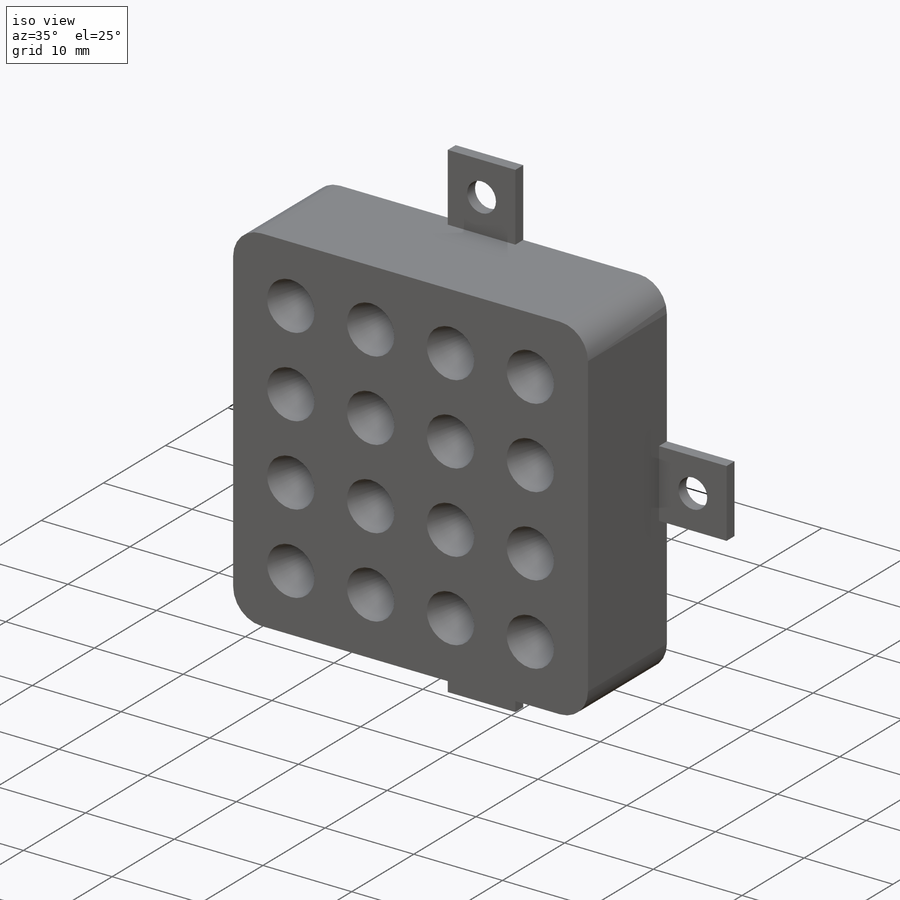
[diagram: iso view]
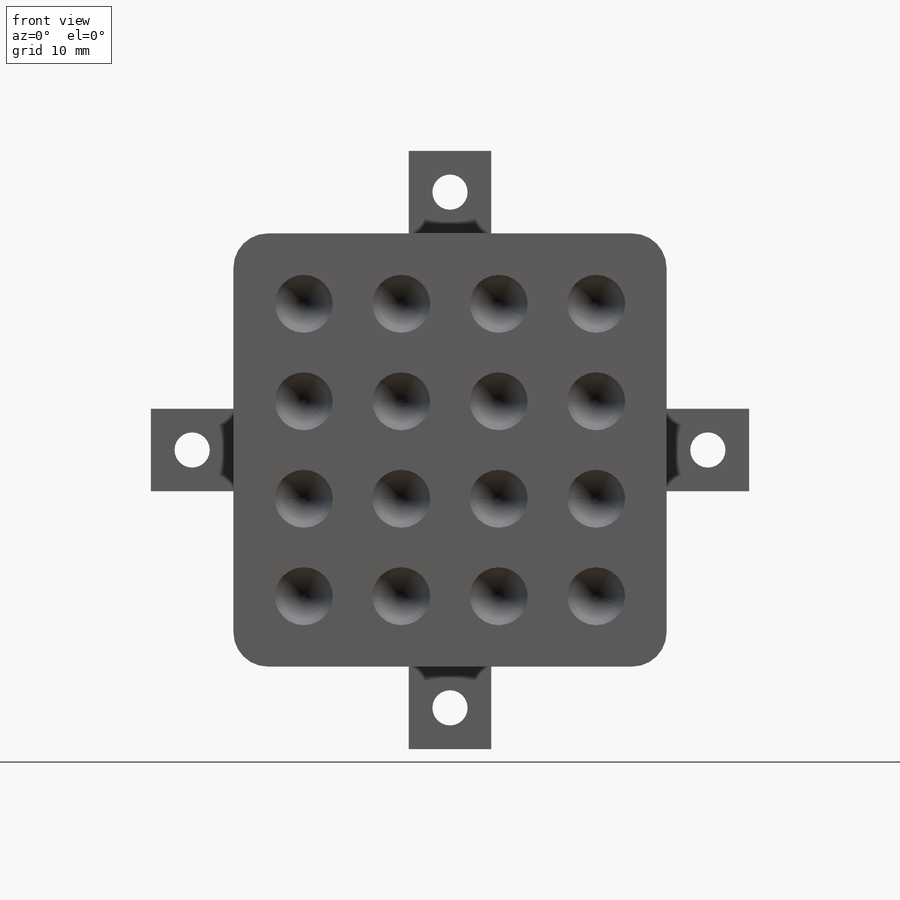
[diagram: front view]
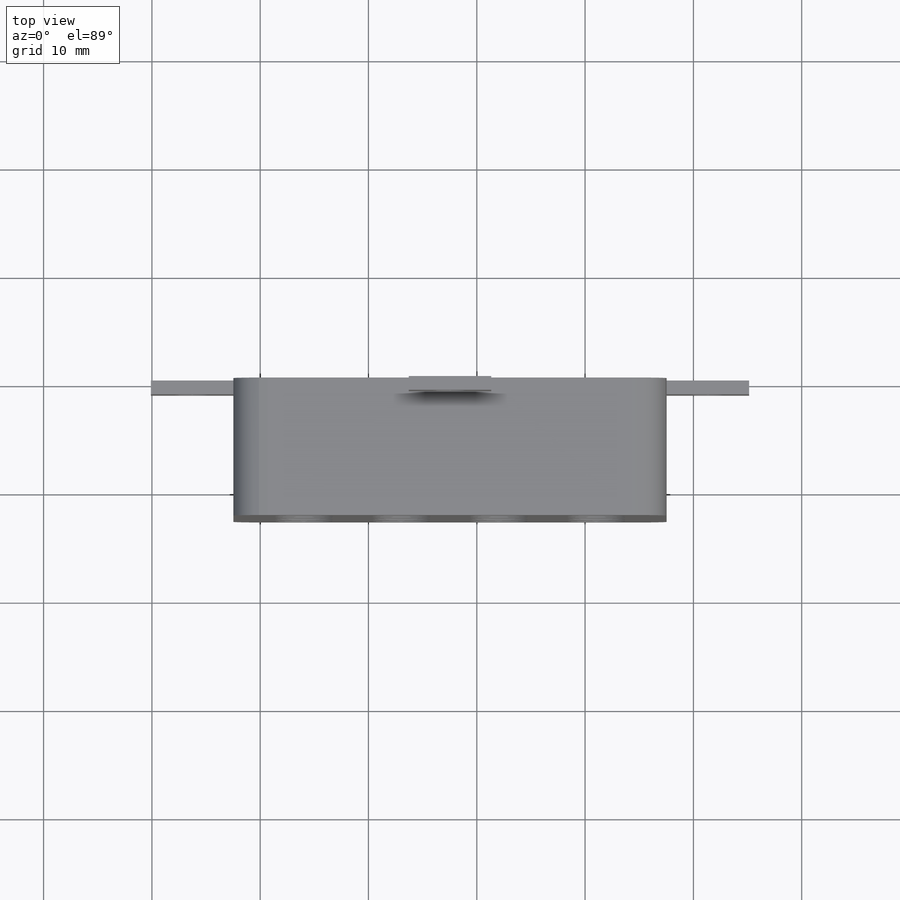
[diagram: top view]
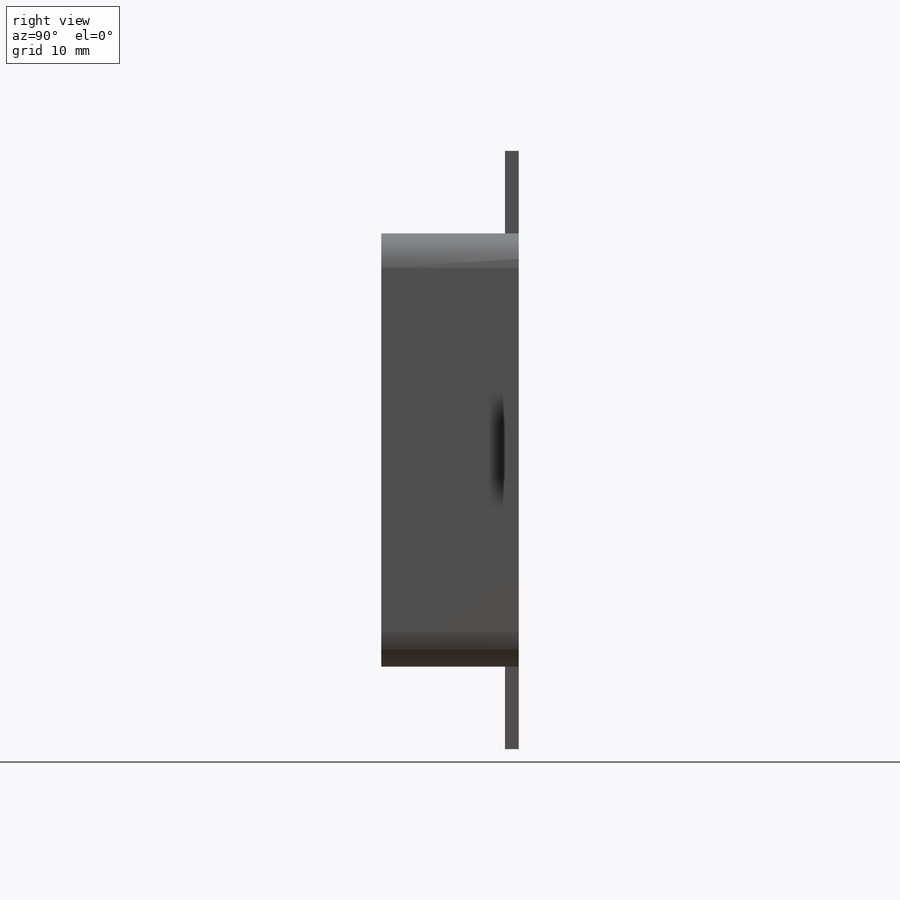
[diagram: right view]
SOLIDWORKS PART (.sldprt)
format: sldprt  version: not decoded by parser v0  size: 292,352 bytes
history: native  units: mm
features: sketch x7, extrude x5, cut_extrude x2, material x1, fillet x1 (+16 scaffold rows collapsed)
feature tree (32):
  scaffold x16  (default folders/planes/origin — collapsed)
  material  "Material <not specified>"
  sketch  "Sketch1"  dims[D1=40.0mm D2=40.0mm]
  extrude  "Boss-Extrude1"  Depth=12.7mm
  sketch  "Sketch2"  dims[D1=~5.351169mm D2=6.5mm D5=6.5mm D3=4.0 D4=4.0]
  cut_extrude  "Cut-Extrude1"  Depth=8mm
  fillet  "Fillet1"  Radius=3.175mm
  sketch  "Sketch3"  dims[D1=1.27mm D2=7.62mm D3=~16.18996mm]
  extrude  "Boss-Extrude2"  Depth=7.62mm
  sketch  "Sketch4"  dims[D1=7.62mm D2=~16.18996mm D3=1.27mm]
  extrude  "Boss-Extrude3"  Depth=7.62mm
  sketch  "Sketch5"  dims[D1=~16.18996mm D2=7.62mm D3=1.27mm]
  extrude  "Boss-Extrude4"  Depth=7.62mm
  sketch  "Sketch6"  dims[D1=7.62mm D2=~16.18996mm D3=1.27mm]
  extrude  "Boss-Extrude5"  Depth=7.62mm
  sketch  "Sketch7"  dims[c1.D1=3.2512mm c1.D4=3.2512mm c1.D7=3.2512mm c1.D10=3.2512mm c1.D12=3.2512mm c1.D2=3.81mm c1.D3=3.81mm c1.D5=3.81mm c1.D6=3.81mm c1.D8=3.81mm c1.D9=3.81mm c2.D10=3.81mm c2.D11=3.81mm]
  cut_extrude  "Cut-Extrude2"  Depth=7.62mm
decode coverage: 15 of 15 modeling features carry decoded parameters
note: ~ marks probable driven/reference dimensions
note: suppression state not decoded; provenance and decode notes live in map.json
